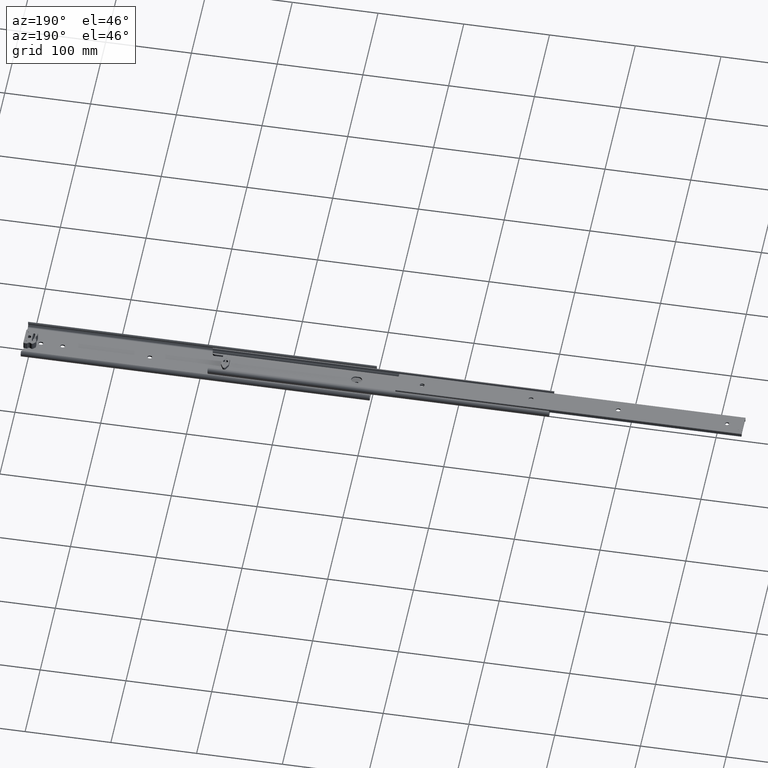
[diagram: clean part render]
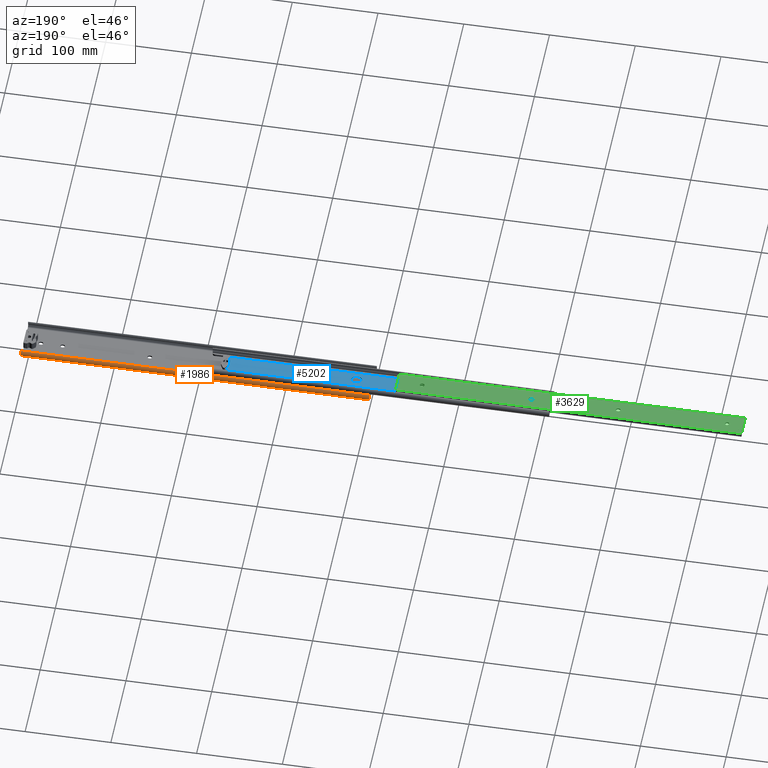
[diagram: same view with three faces highlighted in distinct colors, each labeled with its STEP entity id]
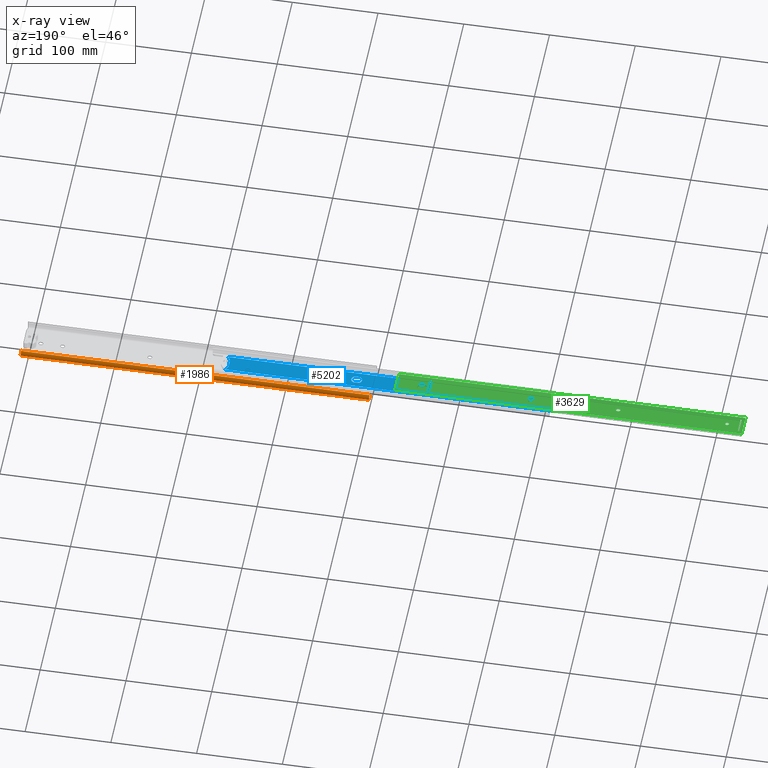
[diagram: x-ray of the same camera — body ghosted, the three highlighted faces saturated]
A machine part, auxiliary view with three faces highlighted in distinct colors.
The next image is the same camera in x-ray (body ghosted, the three faces saturated) — at least one of them is partly hidden behind the body in this view.
Their STEP definitions:

[orange] entity #1986 — the highlighted cylindrical surface (edge-blend (fillet) strip) has radius 4.75 mm, axis along (-1, -0, -0).
#362 = CARTESIAN_POINT ( 'NONE',  ( 406.3999999999999800, 23.44899979584744900, 9.769999999999999600 ) ) ;
#446 = CARTESIAN_POINT ( 'NONE',  ( 406.3999999999999800, 21.00000000001258400, 5.700000000000000200 ) ) ;
#541 = DIRECTION ( 'NONE',  ( 1.000000000000000000, 0.0000000000000000000, 0.0000000000000000000 ) ) ;
#683 = DIRECTION ( 'NONE',  ( 1.000000000000000000, 0.0000000000000000000, 0.0000000000000000000 ) ) ;
#739 = LINE ( 'NONE', #362, #6944 ) ;
#962 = EDGE_CURVE ( 'NONE', #2044, #3858, #3897, .T. ) ;
#1365 = ORIENTED_EDGE ( 'NONE', *, *, #2297, .T. ) ;
#1869 = AXIS2_PLACEMENT_3D ( 'NONE', #446, #5281, #7656 ) ;
#1912 = ORIENTED_EDGE ( 'NONE', *, *, #4209, .F. ) ;
#1986 = ADVANCED_FACE ( 'NONE', ( #3135 ), #2941, .T. ) ;
#2044 = VERTEX_POINT ( 'NONE', #2290 ) ;
#2078 = CARTESIAN_POINT ( 'NONE',  ( 406.3999999999999800, 25.38040352776301500, 3.863001106676766200 ) ) ;
#2290 = CARTESIAN_POINT ( 'NONE',  ( 406.3999999999999800, 25.38040352776301500, 3.863001106676766200 ) ) ;
#2297 = EDGE_CURVE ( 'NONE', #2044, #4192, #2479, .T. ) ;
#2479 = LINE ( 'NONE', #2078, #5694 ) ;
#2594 = CARTESIAN_POINT ( 'NONE',  ( 406.3999999999999800, 23.44899979584744900, 9.769999999999999600 ) ) ;
#2941 = CYLINDRICAL_SURFACE ( 'NONE', #1869, 4.749999999999913800 ) ;
#3135 = FACE_OUTER_BOUND ( 'NONE', #7541, .T. ) ;
#3151 = AXIS2_PLACEMENT_3D ( 'NONE', #6423, #541, #4051 ) ;
#3858 = VERTEX_POINT ( 'NONE', #2594 ) ;
#3897 = CIRCLE ( 'NONE', #3151, 4.749999999999913800 ) ;
#3963 = DIRECTION ( 'NONE',  ( -1.000000000000000000, -0.0000000000000000000, -0.0000000000000000000 ) ) ;
#4051 = DIRECTION ( 'NONE',  ( 0.0000000000000000000, 0.0000000000000000000, -1.000000000000000000 ) ) ;
#4192 = VERTEX_POINT ( 'NONE', #5775 ) ;
#4209 = EDGE_CURVE ( 'NONE', #3858, #5204, #739, .T. ) ;
#4271 = CARTESIAN_POINT ( 'NONE',  ( 0.0000000000000000000, 21.00000000001258400, 5.700000000000000200 ) ) ;
#4354 = CIRCLE ( 'NONE', #4813, 4.749999999999913800 ) ;
#4795 = ORIENTED_EDGE ( 'NONE', *, *, #962, .F. ) ;
#4813 = AXIS2_PLACEMENT_3D ( 'NONE', #4271, #683, #4884 ) ;
#4884 = DIRECTION ( 'NONE',  ( 0.0000000000000000000, 0.0000000000000000000, -1.000000000000000000 ) ) ;
#5204 = VERTEX_POINT ( 'NONE', #7741 ) ;
#5281 = DIRECTION ( 'NONE',  ( -1.000000000000000000, -0.0000000000000000000, -0.0000000000000000000 ) ) ;
#5694 = VECTOR ( 'NONE', #6315, 1000.000000000000000 ) ;
#5775 = CARTESIAN_POINT ( 'NONE',  ( 0.0000000000000000000, 25.38040352776301500, 3.863001106676766200 ) ) ;
#5980 = ORIENTED_EDGE ( 'NONE', *, *, #6545, .T. ) ;
#6315 = DIRECTION ( 'NONE',  ( -1.000000000000000000, -0.0000000000000000000, -0.0000000000000000000 ) ) ;
#6423 = CARTESIAN_POINT ( 'NONE',  ( 406.3999999999999800, 21.00000000001258400, 5.700000000000000200 ) ) ;
#6545 = EDGE_CURVE ( 'NONE', #4192, #5204, #4354, .T. ) ;
#6944 = VECTOR ( 'NONE', #3963, 1000.000000000000000 ) ;
#7541 = EDGE_LOOP ( 'NONE', ( #5980, #1912, #4795, #1365 ) ) ;
#7656 = DIRECTION ( 'NONE',  ( 0.0000000000000000000, 0.0000000000000000000, 1.000000000000000000 ) ) ;
#7741 = CARTESIAN_POINT ( 'NONE',  ( 0.0000000000000000000, 23.44899979584744900, 9.769999999999999600 ) ) ;

[blue] entity #5202 — the highlighted planar face has unit normal (0, -0, 1).
#33 = EDGE_CURVE ( 'NONE', #3889, #3567, #5691, .T. ) ;
#44 = CARTESIAN_POINT ( 'NONE',  ( 0.0000000000000000000, -10.08704672192925900, 1.799999999999998900 ) ) ;
#78 = DIRECTION ( 'NONE',  ( 0.0000000000000000000, -1.000000000000000000, 0.0000000000000000000 ) ) ;
#133 = CIRCLE ( 'NONE', #7601, 1.984499999995670300 ) ;
#134 = FACE_BOUND ( 'NONE', #327, .T. ) ;
#197 = CARTESIAN_POINT ( 'NONE',  ( 233.5500000000000700, 8.764119566451890000E-015, 1.800000000000000300 ) ) ;
#255 = DIRECTION ( 'NONE',  ( 1.000000000000000000, 0.0000000000000000000, 0.0000000000000000000 ) ) ;
#266 = LINE ( 'NONE', #5924, #1684 ) ;
#313 = CIRCLE ( 'NONE', #2582, 4.750000000000004400 ) ;
#317 = VERTEX_POINT ( 'NONE', #4472 ) ;
#327 = EDGE_LOOP ( 'NONE', ( #2123, #5396, #1982, #6434, #6268 ) ) ;
#456 = EDGE_CURVE ( 'NONE', #317, #6985, #4861, .T. ) ;
#484 = CARTESIAN_POINT ( 'NONE',  ( 380.1000000000145700, -8.615500000001420100, 1.800000000000000300 ) ) ;
#514 = LINE ( 'NONE', #1427, #3710 ) ;
#522 = DIRECTION ( 'NONE',  ( 0.0000000000000000000, 0.0000000000000000000, 1.000000000000000000 ) ) ;
#533 = CARTESIAN_POINT ( 'NONE',  ( 397.8999999999999800, -10.08704672192925900, 1.799999999999998900 ) ) ;
#554 = VERTEX_POINT ( 'NONE', #197 ) ;
#605 = VECTOR ( 'NONE', #6336, 1000.000000000000000 ) ;
#630 = CARTESIAN_POINT ( 'NONE',  ( 397.8999999999999800, 10.08704672192925900, 1.800000000000001200 ) ) ;
#746 = LINE ( 'NONE', #2564, #1964 ) ;
#797 = LINE ( 'NONE', #3278, #605 ) ;
#874 = CARTESIAN_POINT ( 'NONE',  ( 152.0000000000000900, 4.750000000000000000, 1.800000000000000300 ) ) ;
#876 = DIRECTION ( 'NONE',  ( -1.000000000000000000, -0.0000000000000000000, -0.0000000000000000000 ) ) ;
#879 = DIRECTION ( 'NONE',  ( 0.0000000000000000000, 0.0000000000000000000, 1.000000000000000000 ) ) ;
#900 = LINE ( 'NONE', #44, #7109 ) ;
#918 = VERTEX_POINT ( 'NONE', #1619 ) ;
#947 = VERTEX_POINT ( 'NONE', #1222 ) ;
#990 = VECTOR ( 'NONE', #78, 1000.000000000000000 ) ;
#1110 = EDGE_CURVE ( 'NONE', #3391, #2142, #133, .T. ) ;
#1163 = EDGE_CURVE ( 'NONE', #317, #4764, #4187, .T. ) ;
#1164 = VERTEX_POINT ( 'NONE', #6503 ) ;
#1193 = AXIS2_PLACEMENT_3D ( 'NONE', #3399, #3996, #5608 ) ;
#1207 = VERTEX_POINT ( 'NONE', #6621 ) ;
#1215 = CARTESIAN_POINT ( 'NONE',  ( 152.0000000000000900, -4.749999999999982200, 1.800000000000000300 ) ) ;
#1221 = CARTESIAN_POINT ( 'NONE',  ( 380.1000000000146300, 8.615500000001324200, 1.800000000000000300 ) ) ;
#1222 = CARTESIAN_POINT ( 'NONE',  ( 0.0000000000000000000, 10.08704672192925900, 1.800000000000001200 ) ) ;
#1296 = CARTESIAN_POINT ( 'NONE',  ( 378.7685382111651500, -10.08704672192925900, 1.799999999999998300 ) ) ;
#1332 = AXIS2_PLACEMENT_3D ( 'NONE', #7475, #3859, #255 ) ;
#1338 = CARTESIAN_POINT ( 'NONE',  ( 152.0000000000000900, 1.749769223387741700E-014, 1.800000000000000300 ) ) ;
#1427 = CARTESIAN_POINT ( 'NONE',  ( 148.8000000000000400, -4.750000000000000000, 1.800000000000000300 ) ) ;
#1438 = DIRECTION ( 'NONE',  ( -0.0000000000000000000, 1.182330589528540500E-016, -1.000000000000000000 ) ) ;
#1479 = EDGE_CURVE ( 'NONE', #6226, #5926, #514, .T. ) ;
#1525 = CARTESIAN_POINT ( 'NONE',  ( 25.00000000000000000, -5.307011471570958900E-016, 1.800000000000000300 ) ) ;
#1529 = EDGE_CURVE ( 'NONE', #2531, #6877, #1734, .T. ) ;
#1555 = AXIS2_PLACEMENT_3D ( 'NONE', #4129, #522, #4729 ) ;
#1619 = CARTESIAN_POINT ( 'NONE',  ( 148.8000000000000400, 4.750000000000000000, 1.800000000000000300 ) ) ;
#1669 = VERTEX_POINT ( 'NONE', #874 ) ;
#1684 = VECTOR ( 'NONE', #7116, 1000.000000000000000 ) ;
#1734 = CIRCLE ( 'NONE', #4477, 1.984499999998667900 ) ;
#1953 = DIRECTION ( 'NONE',  ( 1.000000000000000000, 0.0000000000000000000, 0.0000000000000000000 ) ) ;
#1964 = VECTOR ( 'NONE', #6205, 1000.000000000000000 ) ;
#1982 = ORIENTED_EDGE ( 'NONE', *, *, #2336, .F. ) ;
#2093 = VERTEX_POINT ( 'NONE', #7263 ) ;
#2100 = DIRECTION ( 'NONE',  ( 0.0000000000000000000, 0.0000000000000000000, 1.000000000000000000 ) ) ;
#2123 = ORIENTED_EDGE ( 'NONE', *, *, #33, .F. ) ;
#2134 = DIRECTION ( 'NONE',  ( 1.000000000000000000, 0.0000000000000000000, 0.0000000000000000000 ) ) ;
#2142 = VERTEX_POINT ( 'NONE', #1296 ) ;
#2260 = VECTOR ( 'NONE', #4832, 1000.000000000000000 ) ;
#2336 = EDGE_CURVE ( 'NONE', #554, #7808, #4066, .T. ) ;
#2401 = CARTESIAN_POINT ( 'NONE',  ( 228.8000000000000700, 8.764119566451890000E-015, 1.800000000000000300 ) ) ;
#2434 = ORIENTED_EDGE ( 'NONE', *, *, #1479, .F. ) ;
#2531 = VERTEX_POINT ( 'NONE', #3486 ) ;
#2540 = EDGE_LOOP ( 'NONE', ( #5939, #7402 ) ) ;
#2562 = EDGE_CURVE ( 'NONE', #2093, #1669, #7560, .T. ) ;
#2564 = CARTESIAN_POINT ( 'NONE',  ( 397.8999999999999800, -10.08704672192925900, 1.799999999999998300 ) ) ;
#2571 = CIRCLE ( 'NONE', #1332, 2.249999999999998700 ) ;
#2582 = AXIS2_PLACEMENT_3D ( 'NONE', #4485, #879, #5095 ) ;
#2801 = DIRECTION ( 'NONE',  ( -0.0000000000000000000, 1.182330589528540500E-016, -1.000000000000000000 ) ) ;
#2818 = EDGE_CURVE ( 'NONE', #1164, #554, #5110, .T. ) ;
#2901 = CARTESIAN_POINT ( 'NONE',  ( 0.0000000000000000000, -10.08704672192925900, 1.799999999999998300 ) ) ;
#2909 = AXIS2_PLACEMENT_3D ( 'NONE', #5727, #2100, #6338 ) ;
#2939 = DIRECTION ( 'NONE',  ( 0.0000000000000000000, -1.000000000000000000, -1.182330589528540500E-016 ) ) ;
#2984 = EDGE_CURVE ( 'NONE', #5926, #2093, #6987, .T. ) ;
#2996 = DIRECTION ( 'NONE',  ( 1.000000000000000000, 0.0000000000000000000, 0.0000000000000000000 ) ) ;
#3057 = CARTESIAN_POINT ( 'NONE',  ( 375.6500000000226000, -4.340975521454169900, 1.800000000000000300 ) ) ;
#3085 = ORIENTED_EDGE ( 'NONE', *, *, #5976, .F. ) ;
#3262 = DIRECTION ( 'NONE',  ( 1.000000000000000000, 0.0000000000000000000, 0.0000000000000000000 ) ) ;
#3278 = CARTESIAN_POINT ( 'NONE',  ( 375.6500000000226000, -4.876873906315510400, 1.800000000000000300 ) ) ;
#3391 = VERTEX_POINT ( 'NONE', #6976 ) ;
#3399 = CARTESIAN_POINT ( 'NONE',  ( 225.5999999999999900, 8.568176078588316300E-015, 1.800000000000000300 ) ) ;
#3420 = AXIS2_PLACEMENT_3D ( 'NONE', #2401, #6627, #2996 ) ;
#3486 = CARTESIAN_POINT ( 'NONE',  ( 378.7685382111607700, 10.08704672192925700, 1.800000000000000300 ) ) ;
#3525 = FACE_OUTER_BOUND ( 'NONE', #5046, .T. ) ;
#3537 = ORIENTED_EDGE ( 'NONE', *, *, #1110, .F. ) ;
#3567 = VERTEX_POINT ( 'NONE', #7760 ) ;
#3612 = ORIENTED_EDGE ( 'NONE', *, *, #1529, .F. ) ;
#3705 = VECTOR ( 'NONE', #7288, 1000.000000000000000 ) ;
#3710 = VECTOR ( 'NONE', #3262, 1000.000000000000000 ) ;
#3720 = VECTOR ( 'NONE', #4075, 1000.000000000000000 ) ;
#3819 = EDGE_CURVE ( 'NONE', #2142, #6972, #746, .T. ) ;
#3857 = AXIS2_PLACEMENT_3D ( 'NONE', #7022, #2801, #6433 ) ;
#3859 = DIRECTION ( 'NONE',  ( 0.0000000000000000000, 0.0000000000000000000, 1.000000000000000000 ) ) ;
#3873 = EDGE_CURVE ( 'NONE', #1207, #4764, #4789, .T. ) ;
#3889 = VERTEX_POINT ( 'NONE', #6866 ) ;
#3964 = VERTEX_POINT ( 'NONE', #5152 ) ;
#3996 = DIRECTION ( 'NONE',  ( 0.0000000000000000000, 0.0000000000000000000, 1.000000000000000000 ) ) ;
#4066 = CIRCLE ( 'NONE', #2909, 4.750000000000004400 ) ;
#4075 = DIRECTION ( 'NONE',  ( -1.000000000000000000, -0.0000000000000000000, -0.0000000000000000000 ) ) ;
#4084 = DIRECTION ( 'NONE',  ( 1.000000000000000000, 0.0000000000000000000, 0.0000000000000000000 ) ) ;
#4092 = EDGE_CURVE ( 'NONE', #1669, #918, #6309, .T. ) ;
#4129 = CARTESIAN_POINT ( 'NONE',  ( 152.0000000000000900, 1.749769223387741700E-014, 1.800000000000000300 ) ) ;
#4187 = LINE ( 'NONE', #6737, #990 ) ;
#4233 = LINE ( 'NONE', #630, #2260 ) ;
#4472 = CARTESIAN_POINT ( 'NONE',  ( 375.6500000000226000, 4.340975521477440100, 1.800000000000000300 ) ) ;
#4477 = AXIS2_PLACEMENT_3D ( 'NONE', #1221, #5578, #5492 ) ;
#4485 = CARTESIAN_POINT ( 'NONE',  ( 148.8000000000000400, 1.730174874601383700E-014, 1.800000000000000300 ) ) ;
#4497 = EDGE_LOOP ( 'NONE', ( #5214, #6127, #4807, #4579, #2434 ) ) ;
#4579 = ORIENTED_EDGE ( 'NONE', *, *, #2984, .F. ) ;
#4646 = ORIENTED_EDGE ( 'NONE', *, *, #1163, .F. ) ;
#4729 = DIRECTION ( 'NONE',  ( 1.000000000000000000, 0.0000000000000000000, 0.0000000000000000000 ) ) ;
#4758 = CARTESIAN_POINT ( 'NONE',  ( 375.9179491924545600, 5.340975521478973100, 1.800000000000000300 ) ) ;
#4764 = VERTEX_POINT ( 'NONE', #3057 ) ;
#4789 = CIRCLE ( 'NONE', #4846, 2.000000000000000000 ) ;
#4807 = ORIENTED_EDGE ( 'NONE', *, *, #2562, .F. ) ;
#4832 = DIRECTION ( 'NONE',  ( -1.000000000000000000, -0.0000000000000000000, -0.0000000000000000000 ) ) ;
#4846 = AXIS2_PLACEMENT_3D ( 'NONE', #5053, #1438, #5667 ) ;
#4847 = ORIENTED_EDGE ( 'NONE', *, *, #7040, .T. ) ;
#4861 = CIRCLE ( 'NONE', #3857, 2.000000000000000000 ) ;
#4953 = FACE_BOUND ( 'NONE', #2540, .T. ) ;
#5046 = EDGE_LOOP ( 'NONE', ( #7126, #3537, #6468, #7675, #4646, #7046, #3085, #3612, #4847, #5407 ) ) ;
#5053 = CARTESIAN_POINT ( 'NONE',  ( 377.6500000000226000, -4.340975521454169900, 1.799999999999999600 ) ) ;
#5095 = DIRECTION ( 'NONE',  ( 1.000000000000000000, 0.0000000000000000000, 0.0000000000000000000 ) ) ;
#5107 = CARTESIAN_POINT ( 'NONE',  ( 148.8000000000000400, -4.750000000000000000, 1.799999999999999600 ) ) ;
#5110 = CIRCLE ( 'NONE', #3420, 4.750000000000004400 ) ;
#5149 = EDGE_CURVE ( 'NONE', #7808, #3889, #5532, .T. ) ;
#5152 = CARTESIAN_POINT ( 'NONE',  ( 27.25000000000000000, -5.307011471570958900E-016, 1.800000000000000300 ) ) ;
#5202 = ADVANCED_FACE ( 'NONE', ( #134, #6379, #4953, #3525 ), #5362, .T. ) ;
#5214 = ORIENTED_EDGE ( 'NONE', *, *, #5628, .F. ) ;
#5362 = PLANE ( 'NONE',  #7330 ) ;
#5396 = ORIENTED_EDGE ( 'NONE', *, *, #5149, .F. ) ;
#5407 = ORIENTED_EDGE ( 'NONE', *, *, #5542, .F. ) ;
#5492 = DIRECTION ( 'NONE',  ( 1.000000000000000000, 0.0000000000000000000, 0.0000000000000000000 ) ) ;
#5532 = LINE ( 'NONE', #5889, #3720 ) ;
#5542 = EDGE_CURVE ( 'NONE', #6972, #947, #900, .T. ) ;
#5568 = DIRECTION ( 'NONE',  ( 0.0000000000000000000, 0.0000000000000000000, 1.000000000000000000 ) ) ;
#5578 = DIRECTION ( 'NONE',  ( 0.0000000000000000000, 0.0000000000000000000, 1.000000000000000000 ) ) ;
#5608 = DIRECTION ( 'NONE',  ( 1.000000000000000000, 0.0000000000000000000, 0.0000000000000000000 ) ) ;
#5628 = EDGE_CURVE ( 'NONE', #918, #6226, #313, .T. ) ;
#5667 = DIRECTION ( 'NONE',  ( 2.775557561562891400E-014, -1.000000000000000000, -1.084202172485504400E-016 ) ) ;
#5682 = EDGE_CURVE ( 'NONE', #7510, #3964, #6561, .T. ) ;
#5691 = CIRCLE ( 'NONE', #1193, 4.750000000000004400 ) ;
#5727 = CARTESIAN_POINT ( 'NONE',  ( 228.8000000000000700, 8.764119566451890000E-015, 1.800000000000000300 ) ) ;
#5753 = DIRECTION ( 'NONE',  ( 0.0000000000000000000, 0.0000000000000000000, 1.000000000000000000 ) ) ;
#5827 = AXIS2_PLACEMENT_3D ( 'NONE', #1525, #5753, #2134 ) ;
#5889 = CARTESIAN_POINT ( 'NONE',  ( 225.5999999999999900, 4.749999999999976900, 1.800000000000000300 ) ) ;
#5924 = CARTESIAN_POINT ( 'NONE',  ( 225.5999999999999900, -4.750000000000022200, 1.800000000000000300 ) ) ;
#5926 = VERTEX_POINT ( 'NONE', #1215 ) ;
#5939 = ORIENTED_EDGE ( 'NONE', *, *, #6173, .F. ) ;
#5976 = EDGE_CURVE ( 'NONE', #6877, #6985, #6915, .T. ) ;
#6127 = ORIENTED_EDGE ( 'NONE', *, *, #4092, .F. ) ;
#6173 = EDGE_CURVE ( 'NONE', #3964, #7510, #2571, .T. ) ;
#6205 = DIRECTION ( 'NONE',  ( -1.000000000000000000, -0.0000000000000000000, -0.0000000000000000000 ) ) ;
#6225 = EDGE_CURVE ( 'NONE', #1207, #3391, #797, .T. ) ;
#6226 = VERTEX_POINT ( 'NONE', #5107 ) ;
#6268 = ORIENTED_EDGE ( 'NONE', *, *, #7523, .F. ) ;
#6296 = CARTESIAN_POINT ( 'NONE',  ( 148.8000000000000400, 4.750000000000000000, 1.800000000000000300 ) ) ;
#6309 = LINE ( 'NONE', #6296, #7700 ) ;
#6336 = DIRECTION ( 'NONE',  ( 0.4999999999992420000, -0.8660254037848762500, 0.0000000000000000000 ) ) ;
#6338 = DIRECTION ( 'NONE',  ( 1.000000000000000000, 0.0000000000000000000, 0.0000000000000000000 ) ) ;
#6379 = FACE_BOUND ( 'NONE', #4497, .T. ) ;
#6431 = CARTESIAN_POINT ( 'NONE',  ( 378.3813725862064500, 9.607750000002170100, 1.800000000000000300 ) ) ;
#6433 = DIRECTION ( 'NONE',  ( 0.0000000000000000000, -1.000000000000000000, -1.084202172485504400E-016 ) ) ;
#6434 = ORIENTED_EDGE ( 'NONE', *, *, #2818, .F. ) ;
#6468 = ORIENTED_EDGE ( 'NONE', *, *, #6225, .F. ) ;
#6471 = DIRECTION ( 'NONE',  ( 0.0000000000000000000, 0.0000000000000000000, 1.000000000000000000 ) ) ;
#6503 = CARTESIAN_POINT ( 'NONE',  ( 228.8000000000001000, -4.749999999999991100, 1.800000000000000300 ) ) ;
#6561 = CIRCLE ( 'NONE', #5827, 2.249999999999998700 ) ;
#6578 = DIRECTION ( 'NONE',  ( 0.0000000000000000000, -1.182330589528540500E-016, 1.000000000000000000 ) ) ;
#6621 = CARTESIAN_POINT ( 'NONE',  ( 375.9179491924528000, -5.340975521452659100, 1.800000000000000300 ) ) ;
#6627 = DIRECTION ( 'NONE',  ( 0.0000000000000000000, 0.0000000000000000000, 1.000000000000000000 ) ) ;
#6705 = CARTESIAN_POINT ( 'NONE',  ( 378.3813725862064000, 9.607750000002178900, 1.800000000000000300 ) ) ;
#6737 = CARTESIAN_POINT ( 'NONE',  ( 375.6500000000226000, 4.876873906340637900, 1.800000000000000300 ) ) ;
#6809 = CARTESIAN_POINT ( 'NONE',  ( 228.8000000000001000, 4.749999999999976900, 1.800000000000000300 ) ) ;
#6866 = CARTESIAN_POINT ( 'NONE',  ( 225.5999999999999900, 4.749999999999976900, 1.800000000000000300 ) ) ;
#6877 = VERTEX_POINT ( 'NONE', #6431 ) ;
#6915 = LINE ( 'NONE', #6705, #3705 ) ;
#6972 = VERTEX_POINT ( 'NONE', #2901 ) ;
#6976 = CARTESIAN_POINT ( 'NONE',  ( 378.3813725861981000, -9.607749999981853900, 1.800000000000000300 ) ) ;
#6985 = VERTEX_POINT ( 'NONE', #4758 ) ;
#6987 = CIRCLE ( 'NONE', #7063, 4.750000000000004400 ) ;
#7022 = CARTESIAN_POINT ( 'NONE',  ( 377.6500000000226000, 4.340975521477440100, 1.800000000000000500 ) ) ;
#7040 = EDGE_CURVE ( 'NONE', #2531, #947, #4233, .T. ) ;
#7046 = ORIENTED_EDGE ( 'NONE', *, *, #456, .T. ) ;
#7063 = AXIS2_PLACEMENT_3D ( 'NONE', #1338, #5568, #1953 ) ;
#7109 = VECTOR ( 'NONE', #7295, 1000.000000000000000 ) ;
#7116 = DIRECTION ( 'NONE',  ( 1.000000000000000000, 0.0000000000000000000, 0.0000000000000000000 ) ) ;
#7126 = ORIENTED_EDGE ( 'NONE', *, *, #3819, .F. ) ;
#7263 = CARTESIAN_POINT ( 'NONE',  ( 156.7500000000000900, 1.749769223387741700E-014, 1.800000000000000300 ) ) ;
#7288 = DIRECTION ( 'NONE',  ( -0.5000000000007658300, -0.8660254037839965100, 0.0000000000000000000 ) ) ;
#7295 = DIRECTION ( 'NONE',  ( 0.0000000000000000000, 1.000000000000000000, 1.182330589528540500E-016 ) ) ;
#7330 = AXIS2_PLACEMENT_3D ( 'NONE', #533, #6578, #2939 ) ;
#7402 = ORIENTED_EDGE ( 'NONE', *, *, #5682, .F. ) ;
#7475 = CARTESIAN_POINT ( 'NONE',  ( 25.00000000000000000, -5.307011471570958900E-016, 1.800000000000000300 ) ) ;
#7510 = VERTEX_POINT ( 'NONE', #7666 ) ;
#7523 = EDGE_CURVE ( 'NONE', #3567, #1164, #266, .T. ) ;
#7560 = CIRCLE ( 'NONE', #1555, 4.750000000000004400 ) ;
#7601 = AXIS2_PLACEMENT_3D ( 'NONE', #484, #6471, #4084 ) ;
#7666 = CARTESIAN_POINT ( 'NONE',  ( 22.75000000000000400, -2.551556173489414600E-016, 1.800000000000000300 ) ) ;
#7675 = ORIENTED_EDGE ( 'NONE', *, *, #3873, .T. ) ;
#7700 = VECTOR ( 'NONE', #876, 1000.000000000000000 ) ;
#7760 = CARTESIAN_POINT ( 'NONE',  ( 225.5999999999999900, -4.750000000000022200, 1.799999999999999600 ) ) ;
#7808 = VERTEX_POINT ( 'NONE', #6809 ) ;

[green] entity #3629 — the highlighted planar face has unit normal (0, -0, -1).
#60 = CARTESIAN_POINT ( 'NONE',  ( 375.1000000000000200, 2.250000000000703900, 0.0000000000000000000 ) ) ;
#112 = ORIENTED_EDGE ( 'NONE', *, *, #2720, .F. ) ;
#125 = CARTESIAN_POINT ( 'NONE',  ( 377.3500000000000200, 7.038779627060433600E-013, 0.0000000000000000000 ) ) ;
#140 = LINE ( 'NONE', #721, #4962 ) ;
#141 = DIRECTION ( 'NONE',  ( 1.000000000000000000, 0.0000000000000000000, 0.0000000000000000000 ) ) ;
#150 = CARTESIAN_POINT ( 'NONE',  ( 248.0999999999999900, 7.038289768340773800E-013, 0.0000000000000000000 ) ) ;
#179 = DIRECTION ( 'NONE',  ( 1.000000000000000000, 0.0000000000000000000, 0.0000000000000000000 ) ) ;
#187 = VERTEX_POINT ( 'NONE', #3552 ) ;
#239 = VERTEX_POINT ( 'NONE', #2083 ) ;
#247 = ORIENTED_EDGE ( 'NONE', *, *, #4704, .F. ) ;
#256 = FACE_BOUND ( 'NONE', #6622, .T. ) ;
#323 = CARTESIAN_POINT ( 'NONE',  ( 0.0000000000000000000, 12.68064098956575800, 0.0000000000000000000 ) ) ;
#394 = EDGE_CURVE ( 'NONE', #5453, #5887, #3022, .T. ) ;
#459 = CIRCLE ( 'NONE', #1795, 2.250000000000001800 ) ;
#464 = DIRECTION ( 'NONE',  ( 0.0000000000000000000, 0.0000000000000000000, 1.000000000000000000 ) ) ;
#474 = CARTESIAN_POINT ( 'NONE',  ( 146.5000000000000300, 8.757870196559371000E-015, 0.0000000000000000000 ) ) ;
#501 = ORIENTED_EDGE ( 'NONE', *, *, #2020, .F. ) ;
#527 = VERTEX_POINT ( 'NONE', #843 ) ;
#530 = DIRECTION ( 'NONE',  ( -1.000000000000000000, -0.0000000000000000000, -0.0000000000000000000 ) ) ;
#576 = EDGE_CURVE ( 'NONE', #7476, #5292, #6764, .T. ) ;
#578 = AXIS2_PLACEMENT_3D ( 'NONE', #1277, #5493, #1883 ) ;
#583 = VECTOR ( 'NONE', #5299, 1000.000000000000000 ) ;
#590 = CARTESIAN_POINT ( 'NONE',  ( 365.1999999999999900, -8.699999999999999300, 0.0000000000000000000 ) ) ;
#593 = CARTESIAN_POINT ( 'NONE',  ( 5.000000000000001800, -8.699999999999999300, 0.0000000000000000000 ) ) ;
#622 = EDGE_CURVE ( 'NONE', #1109, #7638, #140, .T. ) ;
#643 = CARTESIAN_POINT ( 'NONE',  ( 403.6000000000000200, -12.68064098956575800, 3.252606517456513300E-015 ) ) ;
#645 = VERTEX_POINT ( 'NONE', #3098 ) ;
#650 = DIRECTION ( 'NONE',  ( 1.000000000000000000, 0.0000000000000000000, 0.0000000000000000000 ) ) ;
#674 = ORIENTED_EDGE ( 'NONE', *, *, #6925, .F. ) ;
#695 = DIRECTION ( 'NONE',  ( 0.0000000000000000000, -1.000000000000000000, 0.0000000000000000000 ) ) ;
#700 = ORIENTED_EDGE ( 'NONE', *, *, #2077, .F. ) ;
#721 = CARTESIAN_POINT ( 'NONE',  ( 365.1999999999999900, 8.699999999999999300, 0.0000000000000000000 ) ) ;
#764 = EDGE_LOOP ( 'NONE', ( #3616, #247, #5832, #5283 ) ) ;
#772 = ORIENTED_EDGE ( 'NONE', *, *, #940, .F. ) ;
#777 = DIRECTION ( 'NONE',  ( 1.000000000000000000, 0.0000000000000000000, 0.0000000000000000000 ) ) ;
#786 = DIRECTION ( 'NONE',  ( 0.0000000000000000000, 0.0000000000000000000, 1.000000000000000000 ) ) ;
#794 = VECTOR ( 'NONE', #2457, 1000.000000000000000 ) ;
#818 = VERTEX_POINT ( 'NONE', #7555 ) ;
#843 = CARTESIAN_POINT ( 'NONE',  ( 247.2999999999999800, -2.249999999999296100, 2.042525567697429100E-015 ) ) ;
#940 = EDGE_CURVE ( 'NONE', #187, #5453, #4481, .T. ) ;
#987 = CARTESIAN_POINT ( 'NONE',  ( 366.7999999999999500, 8.699999999999999300, 0.0000000000000000000 ) ) ;
#1036 = ORIENTED_EDGE ( 'NONE', *, *, #3514, .F. ) ;
#1060 = CARTESIAN_POINT ( 'NONE',  ( 145.6999999999999900, -1.128087758495556000E-014, 0.0000000000000000000 ) ) ;
#1084 = DIRECTION ( 'NONE',  ( 1.000000000000000000, 0.0000000000000000000, 0.0000000000000000000 ) ) ;
#1101 = AXIS2_PLACEMENT_3D ( 'NONE', #1881, #7426, #179 ) ;
#1109 = VERTEX_POINT ( 'NONE', #987 ) ;
#1151 = EDGE_CURVE ( 'NONE', #2609, #5741, #6005, .T. ) ;
#1159 = CARTESIAN_POINT ( 'NONE',  ( 375.1000000000000200, 7.038779627060433600E-013, 0.0000000000000000000 ) ) ;
#1186 = CARTESIAN_POINT ( 'NONE',  ( 250.3499999999999700, 7.038289768340773800E-013, 0.0000000000000000000 ) ) ;
#1189 = DIRECTION ( 'NONE',  ( 1.000000000000000000, -1.084202172485510900E-015, 0.0000000000000000000 ) ) ;
#1210 = DIRECTION ( 'NONE',  ( 0.0000000000000000000, -1.368009296536524700E-016, -1.000000000000000000 ) ) ;
#1211 = EDGE_CURVE ( 'NONE', #7781, #6829, #7207, .T. ) ;
#1233 = ORIENTED_EDGE ( 'NONE', *, *, #6696, .F. ) ;
#1277 = CARTESIAN_POINT ( 'NONE',  ( 19.10000000000000100, 0.0000000000000000000, 0.0000000000000000000 ) ) ;
#1384 = ORIENTED_EDGE ( 'NONE', *, *, #394, .F. ) ;
#1387 = CIRCLE ( 'NONE', #4957, 2.249999999999974200 ) ;
#1416 = LINE ( 'NONE', #7099, #4619 ) ;
#1418 = DIRECTION ( 'NONE',  ( 0.0000000000000000000, 0.0000000000000000000, 1.000000000000000000 ) ) ;
#1433 = VERTEX_POINT ( 'NONE', #5470 ) ;
#1456 = AXIS2_PLACEMENT_3D ( 'NONE', #474, #4688, #1084 ) ;
#1473 = VERTEX_POINT ( 'NONE', #593 ) ;
#1627 = EDGE_CURVE ( 'NONE', #4543, #4436, #7201, .T. ) ;
#1660 = AXIS2_PLACEMENT_3D ( 'NONE', #5031, #1418, #5650 ) ;
#1664 = DIRECTION ( 'NONE',  ( 1.000000000000000000, 0.0000000000000000000, 0.0000000000000000000 ) ) ;
#1697 = LINE ( 'NONE', #6130, #3294 ) ;
#1767 = DIRECTION ( 'NONE',  ( 1.000000000000000000, 0.0000000000000000000, 0.0000000000000000000 ) ) ;
#1795 = AXIS2_PLACEMENT_3D ( 'NONE', #1060, #5287, #1664 ) ;
#1832 = DIRECTION ( 'NONE',  ( 1.246209393661499400E-016, -1.000000000000000000, 0.0000000000000000000 ) ) ;
#1841 = AXIS2_PLACEMENT_3D ( 'NONE', #7359, #3751, #141 ) ;
#1872 = FACE_BOUND ( 'NONE', #5176, .T. ) ;
#1881 = CARTESIAN_POINT ( 'NONE',  ( 248.0999999999999900, 7.038289768340773800E-013, 0.0000000000000000000 ) ) ;
#1882 = DIRECTION ( 'NONE',  ( -1.000000000000000000, -0.0000000000000000000, -0.0000000000000000000 ) ) ;
#1883 = DIRECTION ( 'NONE',  ( 1.000000000000000000, 0.0000000000000000000, 0.0000000000000000000 ) ) ;
#1895 = DIRECTION ( 'NONE',  ( -9.969675149291995700E-017, 1.000000000000000000, -0.0000000000000000000 ) ) ;
#1917 = VERTEX_POINT ( 'NONE', #6618 ) ;
#1937 = DIRECTION ( 'NONE',  ( 0.0000000000000000000, 0.0000000000000000000, 1.000000000000000000 ) ) ;
#1945 = VECTOR ( 'NONE', #3541, 1000.000000000000000 ) ;
#1949 = LINE ( 'NONE', #7834, #6579 ) ;
#1954 = CARTESIAN_POINT ( 'NONE',  ( 403.6000000000000200, 12.68064098956575800, 0.0000000000000000000 ) ) ;
#2020 = EDGE_CURVE ( 'NONE', #5887, #3871, #7756, .T. ) ;
#2077 = EDGE_CURVE ( 'NONE', #5292, #1433, #2393, .T. ) ;
#2083 = CARTESIAN_POINT ( 'NONE',  ( 3.399999999999958600, -8.699999999999997500, 2.924891563963583300E-015 ) ) ;
#2084 = ORIENTED_EDGE ( 'NONE', *, *, #3183, .T. ) ;
#2098 = DIRECTION ( 'NONE',  ( 1.000000000000000000, 0.0000000000000000000, 0.0000000000000000000 ) ) ;
#2118 = EDGE_CURVE ( 'NONE', #7638, #1917, #6999, .T. ) ;
#2161 = VERTEX_POINT ( 'NONE', #125 ) ;
#2173 = EDGE_CURVE ( 'NONE', #4436, #5788, #5030, .T. ) ;
#2195 = AXIS2_PLACEMENT_3D ( 'NONE', #5993, #786, #2664 ) ;
#2228 = AXIS2_PLACEMENT_3D ( 'NONE', #5557, #1937, #6172 ) ;
#2230 = DIRECTION ( 'NONE',  ( 1.000000000000000000, 0.0000000000000000000, 0.0000000000000000000 ) ) ;
#2347 = CARTESIAN_POINT ( 'NONE',  ( 0.0000000000000000000, 12.68064098956575800, 0.0000000000000000000 ) ) ;
#2383 = CARTESIAN_POINT ( 'NONE',  ( 3.399999999999999900, 8.699999999999999300, 0.0000000000000000000 ) ) ;
#2393 = LINE ( 'NONE', #643, #794 ) ;
#2451 = ORIENTED_EDGE ( 'NONE', *, *, #6328, .F. ) ;
#2457 = DIRECTION ( 'NONE',  ( -1.000000000000000000, -0.0000000000000000000, -0.0000000000000000000 ) ) ;
#2472 = EDGE_CURVE ( 'NONE', #7476, #6426, #7749, .T. ) ;
#2585 = VECTOR ( 'NONE', #1882, 1000.000000000000000 ) ;
#2609 = VERTEX_POINT ( 'NONE', #5375 ) ;
#2645 = EDGE_LOOP ( 'NONE', ( #772, #4907, #112, #501, #1384 ) ) ;
#2664 = DIRECTION ( 'NONE',  ( 1.000000000000000000, 0.0000000000000000000, 0.0000000000000000000 ) ) ;
#2720 = EDGE_CURVE ( 'NONE', #3871, #7818, #6445, .T. ) ;
#2725 = DIRECTION ( 'NONE',  ( 0.0000000000000000000, -1.000000000000000000, 1.368009296536524700E-016 ) ) ;
#2772 = CARTESIAN_POINT ( 'NONE',  ( 374.2999999999996100, -2.249999999999296100, 2.042525567697429100E-015 ) ) ;
#2832 = CARTESIAN_POINT ( 'NONE',  ( 21.35000000000000500, 0.0000000000000000000, 0.0000000000000000000 ) ) ;
#2833 = VECTOR ( 'NONE', #5250, 1000.000000000000000 ) ;
#2960 = LINE ( 'NONE', #590, #4763 ) ;
#2976 = CARTESIAN_POINT ( 'NONE',  ( 145.6999999999999900, -2.250000000000000000, 0.0000000000000000000 ) ) ;
#3022 = CIRCLE ( 'NONE', #3050, 2.250000000000001800 ) ;
#3050 = AXIS2_PLACEMENT_3D ( 'NONE', #4680, #464, #4059 ) ;
#3072 = EDGE_CURVE ( 'NONE', #2161, #6566, #3400, .T. ) ;
#3098 = CARTESIAN_POINT ( 'NONE',  ( 16.85000000000000100, 2.755455298081548200E-016, 0.0000000000000000000 ) ) ;
#3169 = LINE ( 'NONE', #5360, #4585 ) ;
#3179 = VERTEX_POINT ( 'NONE', #3928 ) ;
#3183 = EDGE_CURVE ( 'NONE', #6426, #1433, #5683, .T. ) ;
#3219 = CARTESIAN_POINT ( 'NONE',  ( 146.5000000000000300, 2.250000000000000000, 0.0000000000000000000 ) ) ;
#3225 = LINE ( 'NONE', #7627, #7654 ) ;
#3271 = FACE_OUTER_BOUND ( 'NONE', #6243, .T. ) ;
#3274 = EDGE_CURVE ( 'NONE', #527, #4543, #6894, .T. ) ;
#3294 = VECTOR ( 'NONE', #1895, 1000.000000000000000 ) ;
#3400 = CIRCLE ( 'NONE', #1660, 2.249999999999974200 ) ;
#3422 = CARTESIAN_POINT ( 'NONE',  ( 403.6000000000000200, 12.68064098956575800, 0.0000000000000000000 ) ) ;
#3482 = DIRECTION ( 'NONE',  ( -0.0000000000000000000, 1.000000000000000000, -0.0000000000000000000 ) ) ;
#3514 = EDGE_CURVE ( 'NONE', #6829, #3179, #3578, .T. ) ;
#3541 = DIRECTION ( 'NONE',  ( 0.0000000000000000000, -1.000000000000000000, 1.368009296536524700E-016 ) ) ;
#3552 = CARTESIAN_POINT ( 'NONE',  ( 145.6999999999999300, -2.250000000000000400, 2.042525567697525300E-015 ) ) ;
#3578 = LINE ( 'NONE', #6514, #583 ) ;
#3601 = VECTOR ( 'NONE', #2098, 1000.000000000000000 ) ;
#3616 = ORIENTED_EDGE ( 'NONE', *, *, #6244, .F. ) ;
#3629 = ADVANCED_FACE ( 'NONE', ( #256, #5078, #7238, #1872, #6498, #4881, #3271 ), #4814, .F. ) ;
#3671 = ORIENTED_EDGE ( 'NONE', *, *, #622, .F. ) ;
#3700 = ORIENTED_EDGE ( 'NONE', *, *, #2472, .T. ) ;
#3751 = DIRECTION ( 'NONE',  ( 0.0000000000000000000, 0.0000000000000000000, 1.000000000000000000 ) ) ;
#3865 = EDGE_LOOP ( 'NONE', ( #7005, #4931 ) ) ;
#3871 = VERTEX_POINT ( 'NONE', #3219 ) ;
#3928 = CARTESIAN_POINT ( 'NONE',  ( 375.1000000000004800, -2.249999999999296100, 0.0000000000000000000 ) ) ;
#3965 = CARTESIAN_POINT ( 'NONE',  ( 3.399999999999999900, 8.699999999999999300, 0.0000000000000000000 ) ) ;
#4006 = CARTESIAN_POINT ( 'NONE',  ( 247.2999999999999800, -2.249999999999296100, 0.0000000000000000000 ) ) ;
#4010 = CARTESIAN_POINT ( 'NONE',  ( 403.6000000000000200, 12.68064098956575800, 0.0000000000000000000 ) ) ;
#4052 = VECTOR ( 'NONE', #2725, 1000.000000000000000 ) ;
#4059 = DIRECTION ( 'NONE',  ( 1.000000000000000000, 0.0000000000000000000, 0.0000000000000000000 ) ) ;
#4151 = EDGE_LOOP ( 'NONE', ( #1036, #7064, #2451, #7347, #5291 ) ) ;
#4274 = CIRCLE ( 'NONE', #578, 2.250000000000001800 ) ;
#4284 = ORIENTED_EDGE ( 'NONE', *, *, #576, .F. ) ;
#4342 = CARTESIAN_POINT ( 'NONE',  ( 366.7999999999999500, -8.700000000000001100, 0.0000000000000000000 ) ) ;
#4355 = EDGE_CURVE ( 'NONE', #5788, #818, #3169, .T. ) ;
#4367 = DIRECTION ( 'NONE',  ( 0.0000000000000000000, 0.0000000000000000000, 1.000000000000000000 ) ) ;
#4390 = CIRCLE ( 'NONE', #2228, 2.250000000000001800 ) ;
#4392 = EDGE_CURVE ( 'NONE', #3179, #2161, #1387, .T. ) ;
#4436 = VERTEX_POINT ( 'NONE', #1186 ) ;
#4481 = LINE ( 'NONE', #2976, #7496 ) ;
#4543 = VERTEX_POINT ( 'NONE', #5513 ) ;
#4585 = VECTOR ( 'NONE', #530, 1000.000000000000000 ) ;
#4602 = DIRECTION ( 'NONE',  ( -1.000000000000000000, -0.0000000000000000000, -0.0000000000000000000 ) ) ;
#4619 = VECTOR ( 'NONE', #3482, 1000.000000000000000 ) ;
#4663 = CARTESIAN_POINT ( 'NONE',  ( 248.1000000000000200, 2.250000000000703900, 0.0000000000000000000 ) ) ;
#4680 = CARTESIAN_POINT ( 'NONE',  ( 146.5000000000000300, 8.757870196559371000E-015, 0.0000000000000000000 ) ) ;
#4688 = DIRECTION ( 'NONE',  ( 0.0000000000000000000, 0.0000000000000000000, 1.000000000000000000 ) ) ;
#4704 = EDGE_CURVE ( 'NONE', #5741, #239, #1949, .T. ) ;
#4763 = VECTOR ( 'NONE', #1189, 1000.000000000000000 ) ;
#4804 = EDGE_CURVE ( 'NONE', #645, #5135, #4390, .T. ) ;
#4811 = ORIENTED_EDGE ( 'NONE', *, *, #1627, .F. ) ;
#4814 = PLANE ( 'NONE',  #7015 ) ;
#4881 = FACE_BOUND ( 'NONE', #3865, .T. ) ;
#4907 = ORIENTED_EDGE ( 'NONE', *, *, #7480, .F. ) ;
#4917 = DIRECTION ( 'NONE',  ( -1.000000000000000000, -0.0000000000000000000, -0.0000000000000000000 ) ) ;
#4923 = VECTOR ( 'NONE', #5243, 1000.000000000000000 ) ;
#4931 = ORIENTED_EDGE ( 'NONE', *, *, #4804, .F. ) ;
#4957 = AXIS2_PLACEMENT_3D ( 'NONE', #1159, #5383, #1767 ) ;
#4962 = VECTOR ( 'NONE', #4917, 1000.000000000000000 ) ;
#5030 = CIRCLE ( 'NONE', #7107, 2.249999999999974200 ) ;
#5031 = CARTESIAN_POINT ( 'NONE',  ( 375.1000000000000200, 7.038779627060433600E-013, 0.0000000000000000000 ) ) ;
#5078 = FACE_BOUND ( 'NONE', #764, .T. ) ;
#5131 = CARTESIAN_POINT ( 'NONE',  ( 3.400000000000002100, -8.699999999999999300, 0.0000000000000000000 ) ) ;
#5135 = VERTEX_POINT ( 'NONE', #2832 ) ;
#5176 = EDGE_LOOP ( 'NONE', ( #6046, #1233, #7632, #5852, #4811 ) ) ;
#5216 = VECTOR ( 'NONE', #695, 1000.000000000000000 ) ;
#5243 = DIRECTION ( 'NONE',  ( -1.000000000000000000, -0.0000000000000000000, -0.0000000000000000000 ) ) ;
#5250 = DIRECTION ( 'NONE',  ( -1.000000000000000000, -0.0000000000000000000, -0.0000000000000000000 ) ) ;
#5261 = EDGE_CURVE ( 'NONE', #1917, #7795, #2960, .T. ) ;
#5279 = CARTESIAN_POINT ( 'NONE',  ( 145.6999999999999900, 2.250000000000000000, 0.0000000000000000000 ) ) ;
#5283 = ORIENTED_EDGE ( 'NONE', *, *, #6671, .F. ) ;
#5287 = DIRECTION ( 'NONE',  ( 0.0000000000000000000, 0.0000000000000000000, 1.000000000000000000 ) ) ;
#5291 = ORIENTED_EDGE ( 'NONE', *, *, #4392, .F. ) ;
#5292 = VERTEX_POINT ( 'NONE', #5437 ) ;
#5299 = DIRECTION ( 'NONE',  ( 1.000000000000000000, 0.0000000000000000000, 0.0000000000000000000 ) ) ;
#5360 = CARTESIAN_POINT ( 'NONE',  ( 247.2999999999999800, 2.250000000000703900, 0.0000000000000000000 ) ) ;
#5375 = CARTESIAN_POINT ( 'NONE',  ( 5.000000000000000000, 8.699999999999999300, 0.0000000000000000000 ) ) ;
#5383 = DIRECTION ( 'NONE',  ( 0.0000000000000000000, 0.0000000000000000000, 1.000000000000000000 ) ) ;
#5430 = DIRECTION ( 'NONE',  ( 0.0000000000000000000, 1.000000000000000000, -1.368009296536524700E-016 ) ) ;
#5437 = CARTESIAN_POINT ( 'NONE',  ( 403.6000000000000200, -12.68064098956575800, 3.252606517456513300E-015 ) ) ;
#5441 = CARTESIAN_POINT ( 'NONE',  ( 365.1999999999999900, 8.699999999999999300, 0.0000000000000000000 ) ) ;
#5453 = VERTEX_POINT ( 'NONE', #6008 ) ;
#5470 = CARTESIAN_POINT ( 'NONE',  ( 0.0000000000000000000, -12.68064098956575800, 3.252606517456513300E-015 ) ) ;
#5493 = DIRECTION ( 'NONE',  ( 0.0000000000000000000, 0.0000000000000000000, 1.000000000000000000 ) ) ;
#5513 = CARTESIAN_POINT ( 'NONE',  ( 248.1000000000000200, -2.249999999999296100, 0.0000000000000000000 ) ) ;
#5518 = EDGE_CURVE ( 'NONE', #5135, #645, #4274, .T. ) ;
#5557 = CARTESIAN_POINT ( 'NONE',  ( 19.10000000000000100, 0.0000000000000000000, 0.0000000000000000000 ) ) ;
#5650 = DIRECTION ( 'NONE',  ( 1.000000000000000000, 0.0000000000000000000, 0.0000000000000000000 ) ) ;
#5683 = LINE ( 'NONE', #323, #4052 ) ;
#5731 = ORIENTED_EDGE ( 'NONE', *, *, #5261, .F. ) ;
#5741 = VERTEX_POINT ( 'NONE', #3965 ) ;
#5788 = VERTEX_POINT ( 'NONE', #4663 ) ;
#5832 = ORIENTED_EDGE ( 'NONE', *, *, #1151, .F. ) ;
#5852 = ORIENTED_EDGE ( 'NONE', *, *, #2173, .F. ) ;
#5887 = VERTEX_POINT ( 'NONE', #7798 ) ;
#5993 = CARTESIAN_POINT ( 'NONE',  ( 374.3000000000000100, 7.037310050901456100E-013, 0.0000000000000000000 ) ) ;
#6005 = LINE ( 'NONE', #2383, #2585 ) ;
#6008 = CARTESIAN_POINT ( 'NONE',  ( 146.5000000000000300, -2.249999999999991100, 0.0000000000000000000 ) ) ;
#6046 = ORIENTED_EDGE ( 'NONE', *, *, #3274, .F. ) ;
#6130 = CARTESIAN_POINT ( 'NONE',  ( 5.000000000000000000, 8.699999999999999300, 0.0000000000000000000 ) ) ;
#6172 = DIRECTION ( 'NONE',  ( 1.000000000000000000, 0.0000000000000000000, 0.0000000000000000000 ) ) ;
#6243 = EDGE_LOOP ( 'NONE', ( #2084, #700, #4284, #3700 ) ) ;
#6244 = EDGE_CURVE ( 'NONE', #239, #1473, #7001, .T. ) ;
#6328 = EDGE_CURVE ( 'NONE', #6566, #7781, #3225, .T. ) ;
#6339 = CIRCLE ( 'NONE', #1841, 2.250000000000001800 ) ;
#6426 = VERTEX_POINT ( 'NONE', #2347 ) ;
#6445 = LINE ( 'NONE', #5279, #2833 ) ;
#6498 = FACE_BOUND ( 'NONE', #2645, .T. ) ;
#6514 = CARTESIAN_POINT ( 'NONE',  ( 374.2999999999995600, -2.249999999999296100, 0.0000000000000000000 ) ) ;
#6566 = VERTEX_POINT ( 'NONE', #60 ) ;
#6579 = VECTOR ( 'NONE', #1832, 1000.000000000000000 ) ;
#6618 = CARTESIAN_POINT ( 'NONE',  ( 365.1999999999999900, -8.699999999999994000, 2.924891563963582900E-015 ) ) ;
#6622 = EDGE_LOOP ( 'NONE', ( #5731, #7104, #3671, #674 ) ) ;
#6671 = EDGE_CURVE ( 'NONE', #1473, #2609, #1697, .T. ) ;
#6696 = EDGE_CURVE ( 'NONE', #818, #527, #6339, .T. ) ;
#6707 = CARTESIAN_POINT ( 'NONE',  ( 365.1999999999999900, 8.699999999999999300, 0.0000000000000000000 ) ) ;
#6718 = VECTOR ( 'NONE', #2230, 1000.000000000000000 ) ;
#6764 = LINE ( 'NONE', #1954, #1945 ) ;
#6829 = VERTEX_POINT ( 'NONE', #2772 ) ;
#6894 = LINE ( 'NONE', #4006, #6718 ) ;
#6925 = EDGE_CURVE ( 'NONE', #7795, #1109, #1416, .T. ) ;
#6999 = LINE ( 'NONE', #6707, #5216 ) ;
#7001 = LINE ( 'NONE', #5131, #3601 ) ;
#7005 = ORIENTED_EDGE ( 'NONE', *, *, #5518, .F. ) ;
#7015 = AXIS2_PLACEMENT_3D ( 'NONE', #7210, #1210, #5430 ) ;
#7064 = ORIENTED_EDGE ( 'NONE', *, *, #1211, .F. ) ;
#7099 = CARTESIAN_POINT ( 'NONE',  ( 366.7999999999999500, 8.699999999999999300, 0.0000000000000000000 ) ) ;
#7104 = ORIENTED_EDGE ( 'NONE', *, *, #2118, .F. ) ;
#7107 = AXIS2_PLACEMENT_3D ( 'NONE', #150, #4367, #777 ) ;
#7201 = CIRCLE ( 'NONE', #1101, 2.249999999999974200 ) ;
#7207 = CIRCLE ( 'NONE', #2195, 2.249999999999974200 ) ;
#7210 = CARTESIAN_POINT ( 'NONE',  ( 403.6000000000000200, 12.68064098956575800, 0.0000000000000000000 ) ) ;
#7238 = FACE_BOUND ( 'NONE', #4151, .T. ) ;
#7347 = ORIENTED_EDGE ( 'NONE', *, *, #3072, .F. ) ;
#7359 = CARTESIAN_POINT ( 'NONE',  ( 247.2999999999999800, 7.036820192181797200E-013, 0.0000000000000000000 ) ) ;
#7371 = CARTESIAN_POINT ( 'NONE',  ( 374.3000000000000100, 2.250000000000703900, 0.0000000000000000000 ) ) ;
#7397 = CARTESIAN_POINT ( 'NONE',  ( 145.6999999999999900, 2.250000000000000000, 0.0000000000000000000 ) ) ;
#7426 = DIRECTION ( 'NONE',  ( 0.0000000000000000000, 0.0000000000000000000, 1.000000000000000000 ) ) ;
#7476 = VERTEX_POINT ( 'NONE', #3422 ) ;
#7480 = EDGE_CURVE ( 'NONE', #7818, #187, #459, .T. ) ;
#7496 = VECTOR ( 'NONE', #650, 1000.000000000000000 ) ;
#7555 = CARTESIAN_POINT ( 'NONE',  ( 247.2999999999999800, 2.250000000000703900, 0.0000000000000000000 ) ) ;
#7627 = CARTESIAN_POINT ( 'NONE',  ( 374.3000000000000100, 2.250000000000703900, 0.0000000000000000000 ) ) ;
#7632 = ORIENTED_EDGE ( 'NONE', *, *, #4355, .F. ) ;
#7638 = VERTEX_POINT ( 'NONE', #5441 ) ;
#7654 = VECTOR ( 'NONE', #4602, 1000.000000000000000 ) ;
#7749 = LINE ( 'NONE', #4010, #4923 ) ;
#7756 = CIRCLE ( 'NONE', #1456, 2.250000000000001800 ) ;
#7781 = VERTEX_POINT ( 'NONE', #7371 ) ;
#7795 = VERTEX_POINT ( 'NONE', #4342 ) ;
#7798 = CARTESIAN_POINT ( 'NONE',  ( 148.7500000000000300, 8.757870196559371000E-015, 0.0000000000000000000 ) ) ;
#7818 = VERTEX_POINT ( 'NONE', #7397 ) ;
#7834 = CARTESIAN_POINT ( 'NONE',  ( 3.399999999999999900, 8.699999999999999300, 0.0000000000000000000 ) ) ;